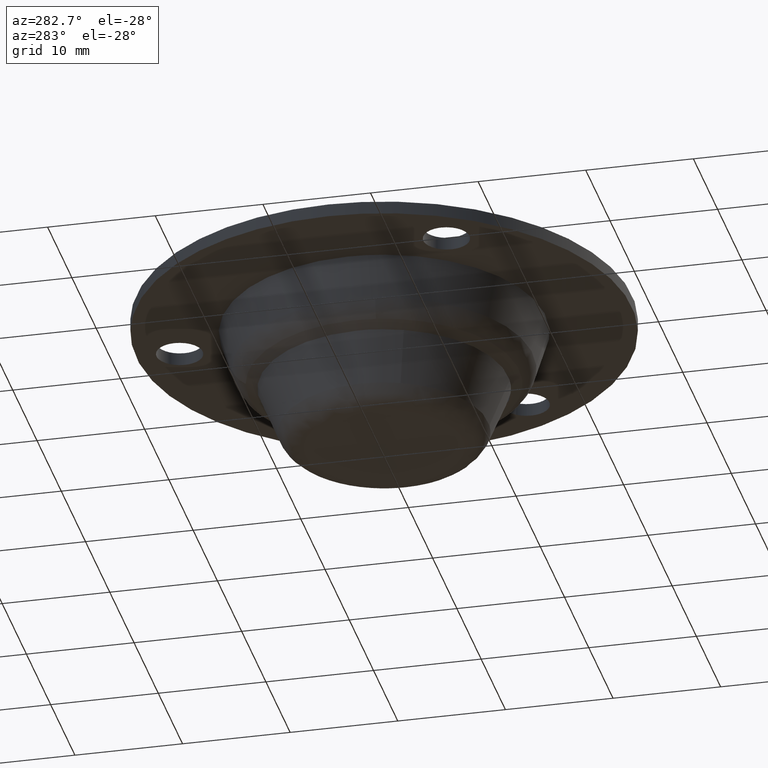
[diagram: clean part render]
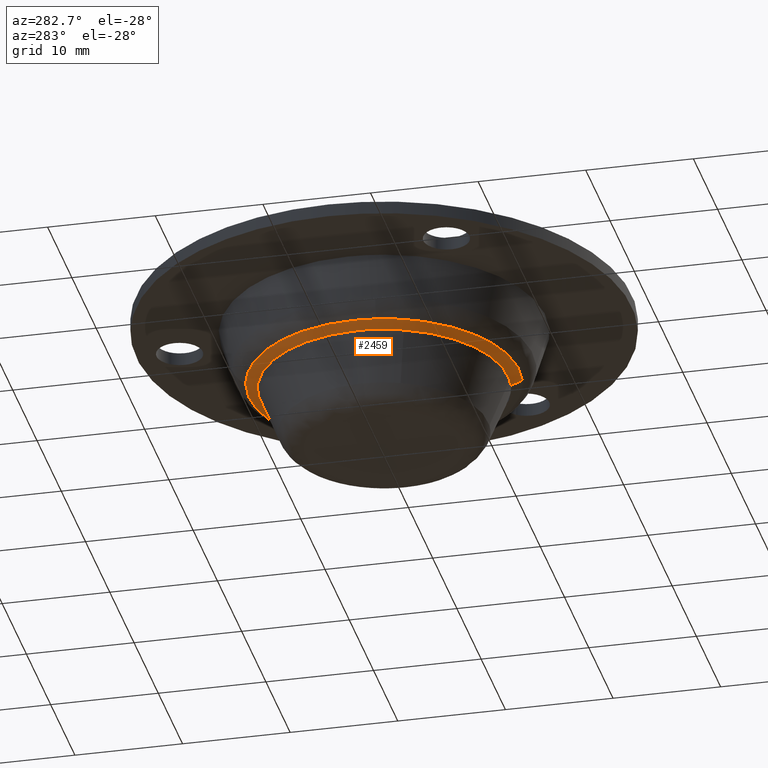
[diagram: same view with one face highlighted and labeled with its STEP entity id]
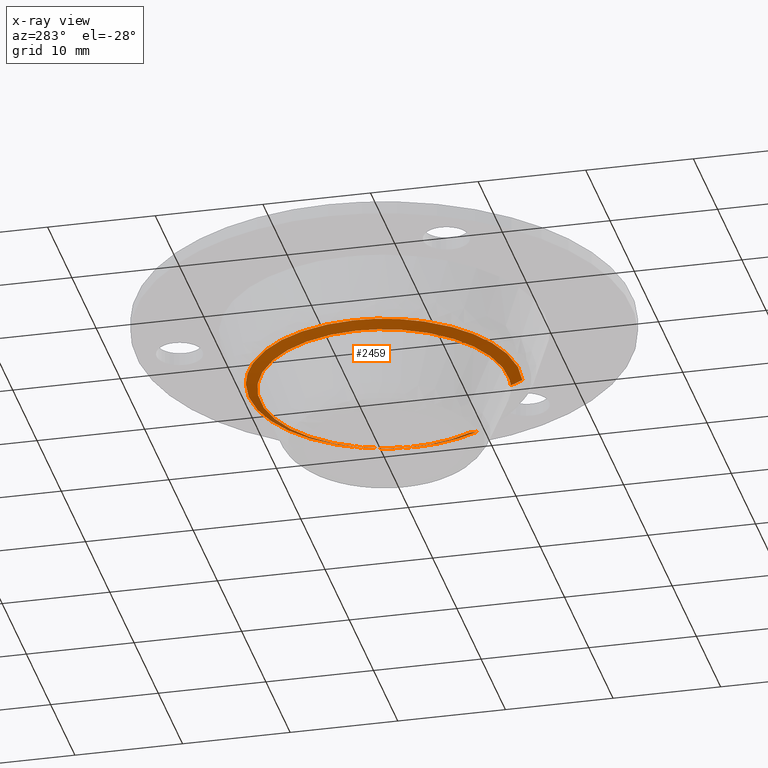
[diagram: x-ray of the same camera — body ghosted, the highlighted face saturated]
A machine part, auxiliary view. The second image highlights one B-rep face of the part: STEP entity #2459.
The next image is the same camera in x-ray: the body ghosted, the highlighted face saturated — about 6% of this face is hidden behind the body in this view.
In plain terms, the highlighted face is a freeform B-spline surface patch.
Its self-contained STEP definition (entity closure, byte-faithful):
#2259=CARTESIAN_POINT('',(9.955666233800443,-5.703703487975649,5.986887724713882));
#2260=CARTESIAN_POINT('',(11.992770003306820,-2.147991790202892,5.986887724713881));
#2261=CARTESIAN_POINT('',(11.316419545699111,1.893719172237268,5.986887724713882));
#2262=CARTESIAN_POINT('',(9.422700373461844,13.210138717936378,5.986887724713882));
#2263=CARTESIAN_POINT('',(-1.893719172237268,11.316419545699111,5.986887724713882));
#2264=CARTESIAN_POINT('',(-13.210138717936378,9.422700373461844,5.986887724713882));
#2265=CARTESIAN_POINT('',(-11.316419545699111,-1.893719172237268,5.986887724713882));
#2266=CARTESIAN_POINT('',(-9.422700373461844,-13.210138717936378,5.986887724713882));
#2267=CARTESIAN_POINT('',(1.893719172237268,-11.316419545699111,5.986887724713882));
#2268=CARTESIAN_POINT('',(10.911933618237255,-6.251558898950737,6.537931093612952));
#2269=CARTESIAN_POINT('',(13.144706451746458,-2.354311934206449,6.537931093612952));
#2270=CARTESIAN_POINT('',(12.403390790618429,2.075615776358545,6.537931093612952));
#2271=CARTESIAN_POINT('',(10.327775014259881,14.479006566976970,6.537931093612952));
#2272=CARTESIAN_POINT('',(-2.075615776358545,12.403390790618429,6.537931093612952));
#2273=CARTESIAN_POINT('',(-14.479006566976970,10.327775014259881,6.537931093612952));
#2274=CARTESIAN_POINT('',(-12.403390790618429,-2.075615776358545,6.537931093612952));
#2275=CARTESIAN_POINT('',(-10.327775014259881,-14.479006566976970,6.537931093612952));
#2276=CARTESIAN_POINT('',(2.075615776358545,-12.403390790618429,6.537931093612952));
#2284=(BOUNDED_SURFACE()B_SPLINE_SURFACE(2,1,((#2259,#2268),(#2260,#2269),(#2261,#2270),(#2262,#2271),(#2263,#2272),(#2264,#2273),(#2265,#2274),(#2266,#2275),(#2267,#2276)),.UNSPECIFIED.,.F.,.F.,.U.)B_SPLINE_SURFACE_WITH_KNOTS((3,2,2,2,3),(2,2),(0.0,9.168002362914969,30.004371369539900,50.840740376164831,71.677109382789766),(0.0,1.0),.UNSPECIFIED.)GEOMETRIC_REPRESENTATION_ITEM()RATIONAL_B_SPLINE_SURFACE(((0.855662221768731,0.855662221768731),(0.871126983722081,0.871126983722081),(1.0,1.0),(0.707106781186548,0.707106781186548),(1.0,1.0),(0.707106781186548,0.707106781186548),(1.0,1.0),(0.707106781186548,0.707106781186548),(1.0,1.0)))REPRESENTATION_ITEM('')SURFACE());
#2285=CARTESIAN_POINT('',(11.500000000000000,0.0,6.0));
#2286=VERTEX_POINT('',#2285);
#2287=CARTESIAN_POINT('',(9.978420960367096,-5.716739904678519,6.000000000000809));
#2288=VERTEX_POINT('',#2287);
#2289=CARTESIAN_POINT('',(11.500000000000000,0.0,6.0));
#2290=CARTESIAN_POINT('',(11.500000000000004,-3.060863227580886,5.999999999999999));
#2291=CARTESIAN_POINT('',(9.978420960367096,-5.716739904678520,6.000000000000809));
#2299=(BOUNDED_CURVE()B_SPLINE_CURVE(2,(#2289,#2290,#2291),.UNSPECIFIED.,.F.,.U.)B_SPLINE_CURVE_WITH_KNOTS((3,3),(0.500000000000000,0.584758082393548),.UNSPECIFIED.)CURVE()GEOMETRIC_REPRESENTATION_ITEM()RATIONAL_B_SPLINE_CURVE((1.0,0.900699729709192,0.868731463346463))REPRESENTATION_ITEM(''));
#2300=EDGE_CURVE('',#2286,#2288,#2299,.T.);
#2301=ORIENTED_EDGE('',*,*,#2300,.F.);
#2302=CARTESIAN_POINT('',(-1.357388917599806,11.419610121468860,6.000000000000160));
#2303=VERTEX_POINT('',#2302);
#2304=CARTESIAN_POINT('',(-1.357388917599806,11.419610121468862,6.000000000000160));
#2305=CARTESIAN_POINT('',(-0.681074960248847,11.499999999999998,6.0));
#2306=CARTESIAN_POINT('',(0.0,11.500000000000000,6.0));
#2307=CARTESIAN_POINT('',(11.500000000000000,11.500000000000000,6.0));
#2308=CARTESIAN_POINT('',(11.500000000000000,0.0,6.0));
#2316=(BOUNDED_CURVE()B_SPLINE_CURVE(2,(#2304,#2305,#2306,#2307,#2308),.UNSPECIFIED.,.F.,.U.)B_SPLINE_CURVE_WITH_KNOTS((3,2,3),(0.229562544270830,0.250000000000000,0.500000000000000),.UNSPECIFIED.)CURVE()GEOMETRIC_REPRESENTATION_ITEM()RATIONAL_B_SPLINE_CURVE((0.956026892870993,0.976056031228504,1.0,0.707106781186548,1.0))REPRESENTATION_ITEM(''));
#2317=EDGE_CURVE('',#2303,#2286,#2316,.T.);
#2318=ORIENTED_EDGE('',*,*,#2317,.F.);
#2319=CARTESIAN_POINT('',(-11.500000000000000,0.0,6.0));
#2320=VERTEX_POINT('',#2319);
#2321=CARTESIAN_POINT('',(-11.500000000000000,0.0,6.0));
#2322=CARTESIAN_POINT('',(-11.500000000000000,10.214011354757851,6.000000000000001));
#2323=CARTESIAN_POINT('',(-1.357388917599806,11.419610121468862,6.000000000000160));
#2331=(BOUNDED_CURVE()B_SPLINE_CURVE(2,(#2321,#2322,#2323),.UNSPECIFIED.,.F.,.U.)B_SPLINE_CURVE_WITH_KNOTS((3,3),(0.0,0.229562544270830),.UNSPECIFIED.)CURVE()GEOMETRIC_REPRESENTATION_ITEM()RATIONAL_B_SPLINE_CURVE((1.0,0.731050749958043,0.956026892870993))REPRESENTATION_ITEM(''));
#2332=EDGE_CURVE('',#2320,#2303,#2331,.T.);
#2333=ORIENTED_EDGE('',*,*,#2332,.F.);
#2334=CARTESIAN_POINT('',(0.702050677030226,-11.478550642255509,6.0));
#2335=VERTEX_POINT('',#2334);
#2336=CARTESIAN_POINT('',(0.702050677030226,-11.478550642255511,6.000000000000001));
#2337=CARTESIAN_POINT('',(0.351353003570288,-11.500000000000005,6.0));
#2338=CARTESIAN_POINT('',(0.0,-11.500000000000000,6.0));
#2339=CARTESIAN_POINT('',(-11.500000000000000,-11.500000000000000,6.0));
#2340=CARTESIAN_POINT('',(-11.500000000000000,0.0,6.0));
#2348=(BOUNDED_CURVE()B_SPLINE_CURVE(2,(#2336,#2337,#2338,#2339,#2340),.UNSPECIFIED.,.F.,.U.)B_SPLINE_CURVE_WITH_KNOTS((3,2,3),(0.739333075397974,0.750000000000000,1.0),.UNSPECIFIED.)CURVE()GEOMETRIC_REPRESENTATION_ITEM()RATIONAL_B_SPLINE_CURVE((0.976072284188181,0.987502920473888,1.0,0.707106781186548,1.0))REPRESENTATION_ITEM(''));
#2349=EDGE_CURVE('',#2335,#2320,#2348,.T.);
#2350=ORIENTED_EDGE('',*,*,#2349,.F.);
#2351=CARTESIAN_POINT('',(1.898047467404934,-11.342284417677920,6.000000000000473));
#2352=VERTEX_POINT('',#2351);
#2353=CARTESIAN_POINT('',(1.898047467404934,-11.342284417677924,6.000000000000473));
#2354=CARTESIAN_POINT('',(1.303619799734097,-11.441757494495940,6.0));
#2355=CARTESIAN_POINT('',(0.702050677030226,-11.478550642255511,6.000000000000001));
#2363=(BOUNDED_CURVE()B_SPLINE_CURVE(2,(#2353,#2354,#2355),.UNSPECIFIED.,.F.,.U.)B_SPLINE_CURVE_WITH_KNOTS((3,3),(0.721599481758385,0.739333075397974),.UNSPECIFIED.)CURVE()GEOMETRIC_REPRESENTATION_ITEM()RATIONAL_B_SPLINE_CURVE((0.941013272811094,0.957069031939248,0.976072284188181))REPRESENTATION_ITEM(''));
#2364=EDGE_CURVE('',#2352,#2335,#2363,.T.);
#2365=ORIENTED_EDGE('',*,*,#2364,.F.);
#2366=CARTESIAN_POINT('',(2.071179270061320,-12.376879274263651,6.524491000001254));
#2367=VERTEX_POINT('',#2366);
#2368=CARTESIAN_POINT('',(1.898047467404934,-11.342284417677920,6.000000000000473));
#2369=CARTESIAN_POINT('',(2.071179270061320,-12.376879274263651,6.524491000001254));
#2370=QUASI_UNIFORM_CURVE('',1,(#2368,#2369),.UNSPECIFIED.,.F.,.U.);
#2371=EDGE_CURVE('',#2352,#2367,#2370,.T.);
#2372=ORIENTED_EDGE('',*,*,#2371,.T.);
#2373=CARTESIAN_POINT('',(-12.381903161650060,-2.040930695166651,6.524491011444682));
#2374=VERTEX_POINT('',#2373);
#2375=CARTESIAN_POINT('',(2.071179270061320,-12.376879274263651,6.524491000001254));
#2376=CARTESIAN_POINT('',(1.042739910352381,-12.548980999999998,6.524490999999900));
#2377=CARTESIAN_POINT('',(0.0,-12.548980999999999,6.524490999999901));
#2378=CARTESIAN_POINT('',(-10.649842906549491,-12.548981000000001,6.524490999999901));
#2379=CARTESIAN_POINT('',(-12.381903161650058,-2.040930695166652,6.524491011444682));
#2387=(BOUNDED_CURVE()B_SPLINE_CURVE(2,(#2375,#2376,#2377,#2378,#2379),.UNSPECIFIED.,.F.,.U.)B_SPLINE_CURVE_WITH_KNOTS((3,2,3),(0.721599481758060,0.750000000000000,0.972006108796967),.UNSPECIFIED.)CURVE()GEOMETRIC_REPRESENTATION_ITEM()RATIONAL_B_SPLINE_CURVE((0.941013272810505,0.966726723184592,1.0,0.739903664792827,0.941751131919223))REPRESENTATION_ITEM(''));
#2388=EDGE_CURVE('',#2367,#2374,#2387,.T.);
#2389=ORIENTED_EDGE('',*,*,#2388,.T.);
#2390=CARTESIAN_POINT('',(-12.548980999999999,0.0,6.524490999999901));
#2391=VERTEX_POINT('',#2390);
#2392=CARTESIAN_POINT('',(-12.381903161650058,-2.040930695166651,6.524491011444683));
#2393=CARTESIAN_POINT('',(-12.548980999999998,-1.027304140377461,6.524490999999900));
#2394=CARTESIAN_POINT('',(-12.548980999999999,0.0,6.524490999999901));
#2402=(BOUNDED_CURVE()B_SPLINE_CURVE(2,(#2392,#2393,#2394),.UNSPECIFIED.,.F.,.U.)B_SPLINE_CURVE_WITH_KNOTS((3,3),(0.972006108796968,1.0),.UNSPECIFIED.)CURVE()GEOMETRIC_REPRESENTATION_ITEM()RATIONAL_B_SPLINE_CURVE((0.941751131919225,0.967203116393722,1.0))REPRESENTATION_ITEM(''));
#2403=EDGE_CURVE('',#2374,#2391,#2402,.T.);
#2404=ORIENTED_EDGE('',*,*,#2403,.T.);
#2405=CARTESIAN_POINT('',(-2.745739527794939,12.244910716029899,6.524491011267107));
#2406=VERTEX_POINT('',#2405);
#2407=CARTESIAN_POINT('',(-12.548980999999999,0.0,6.524490999999901));
#2408=CARTESIAN_POINT('',(-12.548981000000001,10.046679290348280,6.524490999999902));
#2409=CARTESIAN_POINT('',(-2.745739527794939,12.244910716029901,6.524491011267107));
#2417=(BOUNDED_CURVE()B_SPLINE_CURVE(2,(#2407,#2408,#2409),.UNSPECIFIED.,.F.,.U.)B_SPLINE_CURVE_WITH_KNOTS((3,3),(0.0,0.212563823276980),.UNSPECIFIED.)CURVE()GEOMETRIC_REPRESENTATION_ITEM()RATIONAL_B_SPLINE_CURVE((1.0,0.750965990388446,0.925416950449116))REPRESENTATION_ITEM(''));
#2418=EDGE_CURVE('',#2391,#2406,#2417,.T.);
#2419=ORIENTED_EDGE('',*,*,#2418,.T.);
#2420=CARTESIAN_POINT('',(12.548980999999999,0.0,6.524490999999901));
#2421=VERTEX_POINT('',#2420);
#2422=CARTESIAN_POINT('',(-2.745739527794939,12.244910716029901,6.524491011267107));
#2423=CARTESIAN_POINT('',(-1.389706528031847,12.548981000000005,6.524490999999900));
#2424=CARTESIAN_POINT('',(0.0,12.548980999999999,6.524490999999901));
#2425=CARTESIAN_POINT('',(12.548981000000001,12.548981000000001,6.524490999999901));
#2426=CARTESIAN_POINT('',(12.548980999999999,0.0,6.524490999999901));
#2434=(BOUNDED_CURVE()B_SPLINE_CURVE(2,(#2422,#2423,#2424,#2425,#2426),.UNSPECIFIED.,.F.,.U.)B_SPLINE_CURVE_WITH_KNOTS((3,2,3),(0.212563823276980,0.250000000000000,0.500000000000000),.UNSPECIFIED.)CURVE()GEOMETRIC_REPRESENTATION_ITEM()RATIONAL_B_SPLINE_CURVE((0.925416950449116,0.956140790798101,1.0,0.707106781186548,1.0))REPRESENTATION_ITEM(''));
#2435=EDGE_CURVE('',#2406,#2421,#2434,.T.);
#2436=ORIENTED_EDGE('',*,*,#2435,.T.);
#2437=CARTESIAN_POINT('',(10.888610003624130,-6.238196560495181,6.524491000000628));
#2438=VERTEX_POINT('',#2437);
#2439=CARTESIAN_POINT('',(12.548980999999999,0.0,6.524490999999901));
#2440=CARTESIAN_POINT('',(12.548981000000001,-3.340062129255822,6.524490999999900));
#2441=CARTESIAN_POINT('',(10.888610003624134,-6.238196560495181,6.524491000000628));
#2449=(BOUNDED_CURVE()B_SPLINE_CURVE(2,(#2439,#2440,#2441),.UNSPECIFIED.,.F.,.U.)B_SPLINE_CURVE_WITH_KNOTS((3,3),(0.500000000000000,0.584758082393410),.UNSPECIFIED.)CURVE()GEOMETRIC_REPRESENTATION_ITEM()RATIONAL_B_SPLINE_CURVE((1.0,0.900699729709353,0.868731463346567))REPRESENTATION_ITEM(''));
#2450=EDGE_CURVE('',#2421,#2438,#2449,.T.);
#2451=ORIENTED_EDGE('',*,*,#2450,.T.);
#2452=CARTESIAN_POINT('',(9.978420960367096,-5.716739904678519,6.000000000000809));
#2453=CARTESIAN_POINT('',(10.888610003624130,-6.238196560495181,6.524491000000628));
#2454=QUASI_UNIFORM_CURVE('',1,(#2452,#2453),.UNSPECIFIED.,.F.,.U.);
#2455=EDGE_CURVE('',#2288,#2438,#2454,.T.);
#2456=ORIENTED_EDGE('',*,*,#2455,.F.);
#2457=EDGE_LOOP('',(#2301,#2318,#2333,#2350,#2365,#2372,#2389,#2404,#2419,#2436,#2451,#2456));
#2458=FACE_OUTER_BOUND('',#2457,.T.);
#2459=ADVANCED_FACE('',(#2458),#2284,.T.);